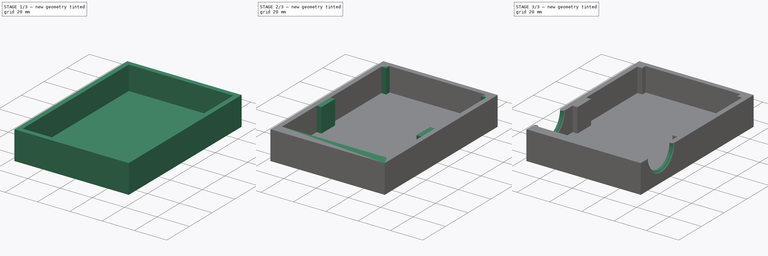
[diagram: build sequence overview — one tinted view per stage of 3, left to right]
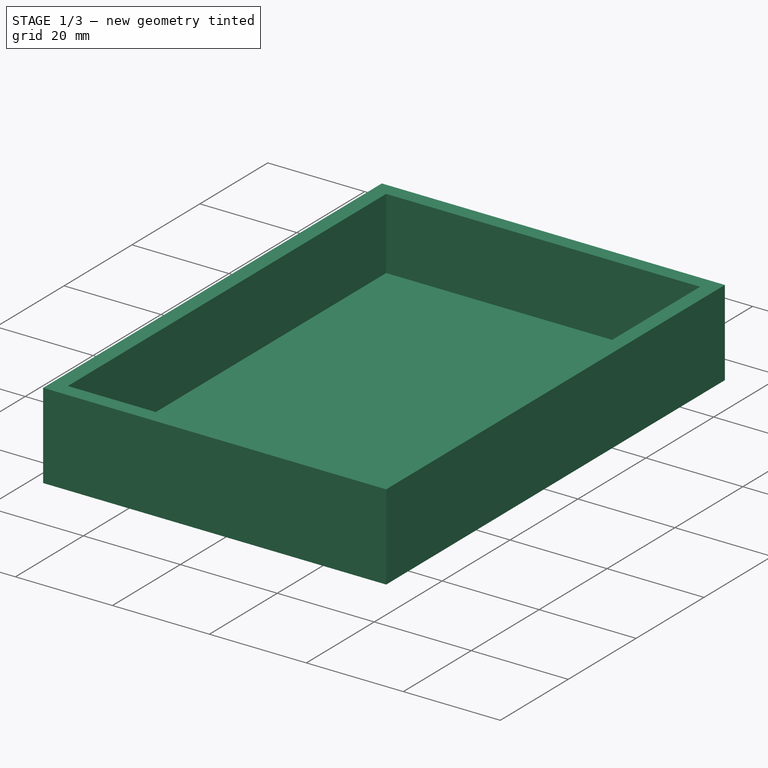
[diagram: stage 1 of 3 — iso view after this stage's code; geometry added in this stage tinted green]
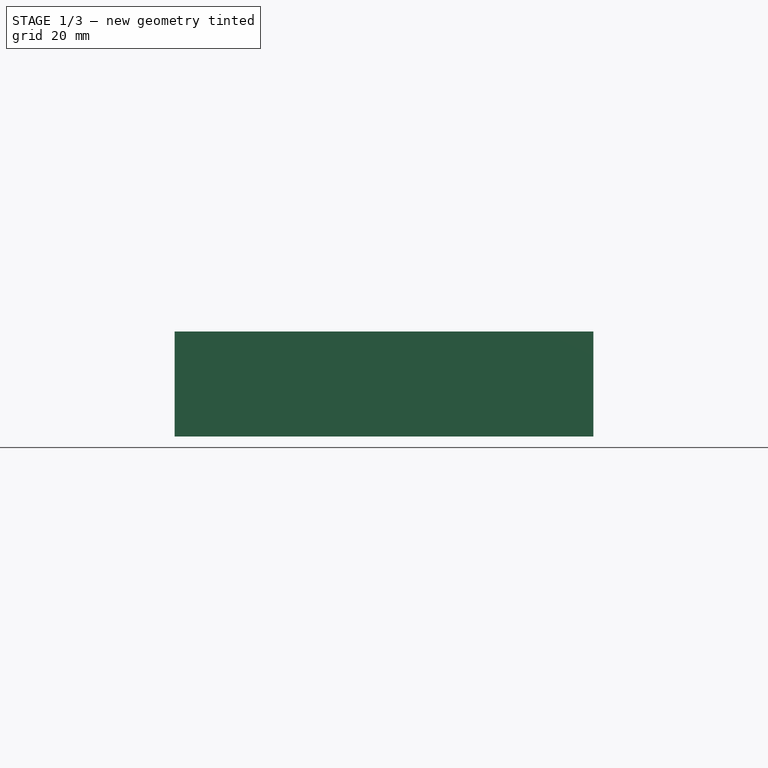
[diagram: stage 1 of 3 — front view after this stage's code; geometry added in this stage tinted green]
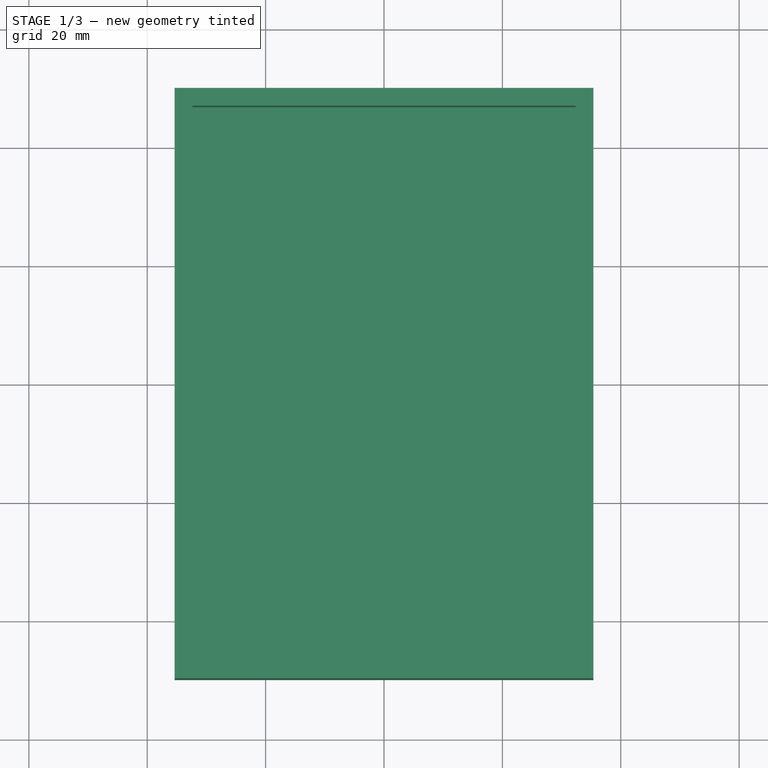
[diagram: stage 1 of 3 — top view after this stage's code; geometry added in this stage tinted green]
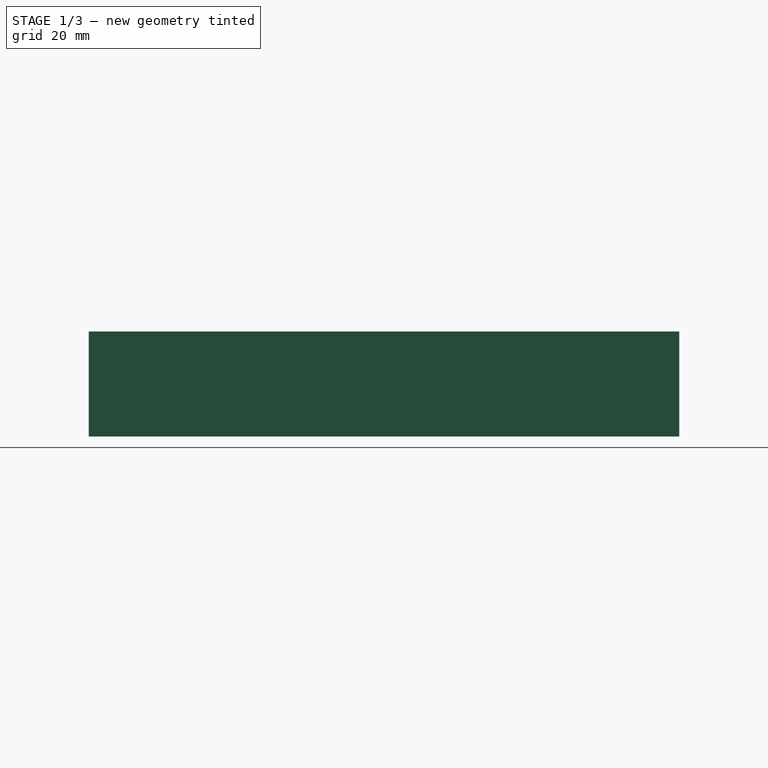
[diagram: stage 1 of 3 — right view after this stage's code; geometry added in this stage tinted green]
FCSTD DOCUMENT  (FreeCAD 1.0R39285 (Git))
Label: FinalCase
License: All rights reserved
LicenseURL: https://en.wikipedia.org/wiki/All_rights_reserved
objects: Sketcher::SketchObject×6, PartDesign::Pad×3, Spreadsheet::Sheet×1, PartDesign::Pocket×1, PartDesign::Revolution×1, PartDesign::Body×1, App::Part×1
note: 28 computed .brp shape members not serialized (recipe doc carries the construction recipe); baked Part::Feature solids carry a one-line shape summary decoded from their .brp

FEATURE [Spreadsheet::Sheet] Spreadsheet  label="S"
  cells = A2='zero_width; B2(zero_width)=18; A3='zero_length; B3(zero_length)=23.5; A4='zero_usb_width; B4(zero_usb_width)=9; A5='zero_usb_nib; B5(zero_usb_nib)=1; A6='zero_pcb_thickness; B6(zero_pcb_thickness)=1.15; A7='zero_usb_thickness; B7(zero_usb_thickness)=3.25; C7='This is also the thickest top part; A8='zero_bottom_height; B8(zero_bottom_height)=1.25; A9='zero_bottom_chip_width; B9(zero_bottom_chip_width)=7; A10='zero_pad_width; B10(zero_pad_width)=2.5; A16='ads1115_width; B16(ads1115_width)=28; A17='ads1115_length; B17(ads1115_length)=17.2; A18='ads115_pcb_thickness; B18(ads115_pcb_thickness)=1.5; A19='ads115_holes; B19(ads115_holes)=2.4; A22='charger_width; B22(charger_width)=17.3; A23='charger_length; B23(charger_length)=28; A24='charger_usb_width; B24(charger_usb_width)=9; A25='charger_holes; B25(charger_holes)=1.5; A26='charger_pcb_thickness; B26(charger_pcb_thickness)=1.6; A27='charger_usb_height; B27(charger_usb_height)=4.2; A31='oled_width; B31(oled_width)=28.15; C31='https://thepihut.com/products/blue-0-96-oled-display-module-128x94?srsltid=AfmBOoqjCmrL4VVzqR_EE5hcJSdx-CRojF6zMIyrO1bcx0NnoYyN6zFz; A32='oled_length; B32(oled_length)=28.25; A33='oled_holes; B33(oled_holes)=1.95; A34='oled_pcb_thickness; B34(oled_pcb_thickness)=1.25; A35='oled_screen_height; B35(oled_screen_height)=1.75; A36='oled_screen_width; B36(oled_screen_width)=25.35; A37='oled_screen_length; B37(oled_screen_length)=16.85; A38='oled_hole_top_edge; B38(oled_hole_top_edge)=1.25; A39='oled_hole_side_edge; B39(oled_hole_side_edge)=1.25; A40='oled_hole_bottom_edge; B40(oled_hole_bottom_edge)=1.25; A41='oled_screen_bottom; B41(oled_screen_bottom)=3; A43='battery_width; B43(battery_width)=30; A44='battery_length; B44(battery_length)=42; A45='batter_depth; B45(batter_depth)=8.2; A49='switch_width; B49(switch_width)=12.3; A50='switch_length; B50(switch_length)=19.2; A51='switch_depth; B51(switch_depth)=11.1; A52='swith_length; B52(swith_length)=6; A53='switch_button_diameter; B53(switch_button_diameter)=3.5; A54='switch_button_height; B54(switch_button_height)=1.75; A55='switch_top_thingies; B55(switch_top_thingies)=0.6; A59='vr_length; B59(vr_length)=15.5; A60='vr_width; B60(vr_width)=10.25; A61='vr_back_depth; B61(vr_back_depth)=1.3; A62='vr_hole; B62(vr_hole)=3.7; A63='vr_hole_top_edge; B63(vr_hole_top_edge)=1; A65='sensor_minor_body_length; B65(sensor_minor_body_length)=24; A66='sensor_diameter; B66(sensor_diameter)=29.5; A67='sensor_length; B67(sensor_length)=41.5; A68='sensor_thread_diameter; B68(sensor_thread_diameter)=16; A69='sensor_thread_pitch; B69(sensor_thread_pitch)=1; A70='sensor_thread_per_inch; B70(sensor_thread_per_inch)=25.4; A71='sensor_thread_length; B71(sensor_thread_length)=7.5; A72='sensor_smaller_body_diameter; B72(sensor_smaller_body_diameter)=26.3; A74='nipple_minor_diameter; B74(nipple_minor_diameter)=12.12; A75='nipple_pitch; B75(nipple_pitch)=1.41; A76='nipple_thread_diameter; B76(nipple_thread_diameter)=13.75; A77='nipple_thread_per_inch; B77(nipple_thread_per_inch)=18; A78='nipple_thread_length; B78(nipple_thread_length)=12.6; A80='dimension_base_height; B80(dimension_base_height)=12; A81='dimension_extender_height; B81(dimension_extender_height)=42; A83='insert_diameter; B83(insert_diameter)=3.05; A85='dimension_wall_thickness; B85(dimension_wall_thickness)=3; A86='dimension_case_width; B86(dimension_case_width)=70.75; A87='dimension_case_length; B87(dimension_case_length)=70; A88='dimension_adapter_wall_thickness; B88(dimension_adapter_wall_thickness)=5; A89='dimension_face_thickness; B89(dimension_face_thickness)=3; A92='button_diameter; B92(button_diameter)=12.25; A93='dimension_oled_edge; B93(dimension_oled_edge)=33; A97='screw_diameter; B97(screw_diameter)=2.75; A98='screw_head_diameter; B98(screw_head_diameter)=4; A102='tollerance; B102(tollerance)=1; A103='insert_tollerance; B103(insert_tollerance)==B83 + 2 - B85
FEATURE [Sketcher::SketchObject] Sketch
  ArcFitTolerance = 1e-06
  AttachmentSupport = -> [XY_Plane001]
  FullyConstrained = true
  MakeInternals = false
  MapMode = 5
  expr: Constraints[8] = <<S>>.dimension_case_width
  expr: Constraints[9] = <<S>>.dimension_case_length + <<S>>.nipple_thread_diameter + <<S>>.dimension_adapter_wall_thickness * 2 + <<S>>.dimension_wall_thickness * 2
  sketch-geometry (4):
    g0: LineSegment StartX=-35.375 StartY=49.875 StartZ=0 EndX=-35.375 EndY=-49.875 EndZ=0
    g1: LineSegment StartX=-35.375 StartY=-49.875 StartZ=0 EndX=35.375 EndY=-49.875 EndZ=0
    g2: LineSegment StartX=35.375 StartY=-49.875 StartZ=0 EndX=35.375 EndY=49.875 EndZ=0
    g3: LineSegment StartX=35.375 StartY=49.875 StartZ=0 EndX=-35.375 EndY=49.875 EndZ=0
  constraints (11):
    c: Coincident(g0,g1)
    c: Coincident(g1,g2)
    c: Coincident(g2,g3)
    c: Coincident(g3,g0)
    c: Vertical(g0)
    c: Vertical(g2)
    c: Horizontal(g1)
    c: Horizontal(g3)
    c: DistanceX(g3,g3) = 70.75
    c: DistanceY(g0,g0) = 99.75
    c: Symmetric(g2,g0,g-1)
FEATURE [PartDesign::Pad] Pad  label="FacePad"
  Direction = (0,0,1)
  Length = 3
  Length2 = 10
  Profile = -> Sketch
  ReferenceAxis = -> Sketch [N_Axis]
  Refine = true
  Suppressed = false
  Type = 0
  expr: Length = <<S>>.dimension_face_thickness
FEATURE [Sketcher::SketchObject] Sketch003
  ArcFitTolerance = 1e-06
  AttachmentSupport = -> [Pad]
  FullyConstrained = true
  MakeInternals = false
  MapMode = 5
  Placement = pos=(0,0,3) rot=(0,0,1;0rad)
  expr: Constraints[20] = <<S>>.dimension_case_length + <<S>>.nipple_thread_diameter + <<S>>.dimension_adapter_wall_thickness * 2 + <<S>>.dimension_wall_thickness * 2
  expr: Constraints[8] = <<S>>.dimension_case_length + <<S>>.nipple_thread_diameter + <<S>>.dimension_adapter_wall_thickness * 2
  expr: Constraints[9] = <<S>>.dimension_case_width - <<S>>.dimension_wall_thickness * 2
  sketch-geometry (8):
    g0: LineSegment StartX=-32.375 StartY=46.875 StartZ=0 EndX=-32.375 EndY=-46.875 EndZ=0
    g1: LineSegment StartX=-32.375 StartY=-46.875 StartZ=0 EndX=32.375 EndY=-46.875 EndZ=0
    g2: LineSegment StartX=32.375 StartY=-46.875 StartZ=0 EndX=32.375 EndY=46.875 EndZ=0
    g3: LineSegment StartX=32.375 StartY=46.875 StartZ=0 EndX=-32.375 EndY=46.875 EndZ=0
    g4: LineSegment StartX=-35.375 StartY=49.875 StartZ=0 EndX=-35.375 EndY=-49.875 EndZ=0
    g5: LineSegment StartX=-35.375 StartY=-49.875 StartZ=0 EndX=35.375 EndY=-49.875 EndZ=0
    g6: LineSegment StartX=35.375 StartY=-49.875 StartZ=0 EndX=35.375 EndY=49.875 EndZ=0
    g7: LineSegment StartX=35.375 StartY=49.875 StartZ=0 EndX=-35.375 EndY=49.875 EndZ=0
  constraints (22):
    c: Coincident(g0,g1)
    c: Coincident(g1,g2)
    c: Coincident(g2,g3)
    c: Coincident(g3,g0)
    c: Vertical(g0)
    c: Vertical(g2)
    c: Horizontal(g1)
    c: Horizontal(g3)
    c: DistanceY(g0,g0) = 93.75
    c: DistanceX(g3,g3) = 64.75
    c: Symmetric(g2,g0,g-1)
    c: Coincident(g4,g5)
    c: Coincident(g5,g6)
    c: Coincident(g6,g7)
    c: Coincident(g7,g4)
    c: Vertical(g4)
    c: Vertical(g6)
    c: Horizontal(g5)
    c: Horizontal(g7)
    c: DistanceX(g7,g7) = 70.75
    c: DistanceY(g4,g4) = 99.75
    c: Symmetric(g6,g4,g-1)
FEATURE [PartDesign::Pad] Pad001  label="OuterWallPad"
  BaseFeature = -> Pad
  Direction = (0,0,1)
  Length = 14.75
  Length2 = 10
  Profile = -> Sketch003
  ReferenceAxis = -> Sketch003 [N_Axis]
  Refine = true
  Suppressed = false
  Type = 0
  expr: Length = <<S>>.sensor_diameter / 2
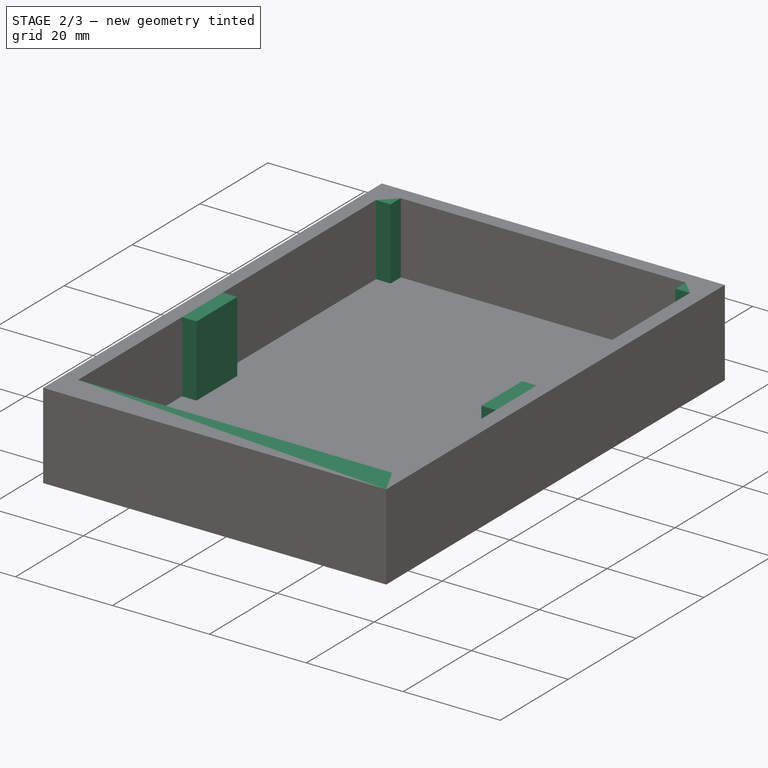
[diagram: stage 2 of 3 — iso view after this stage's code; geometry added in this stage tinted green]
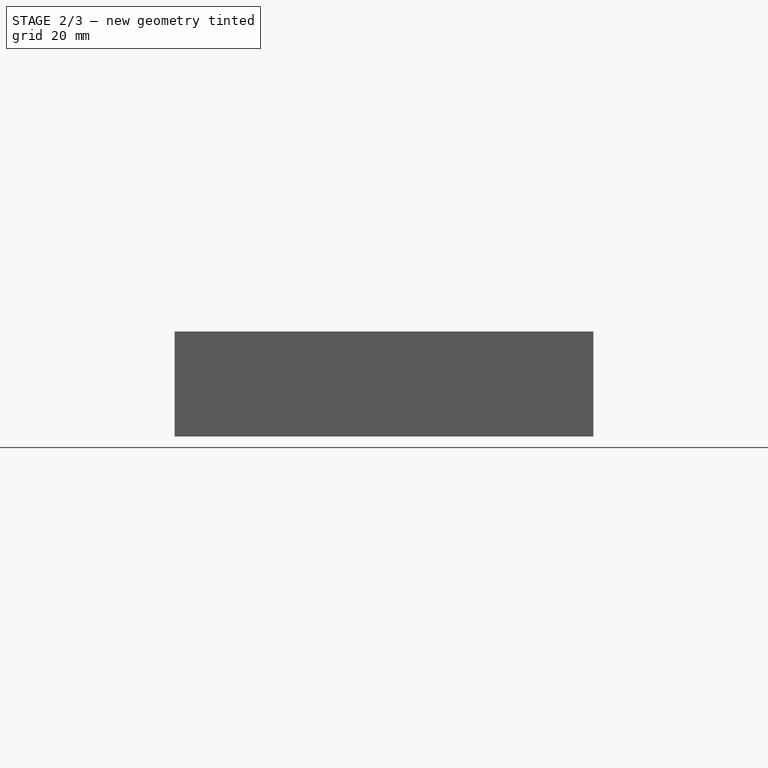
[diagram: stage 2 of 3 — front view after this stage's code; geometry added in this stage tinted green]
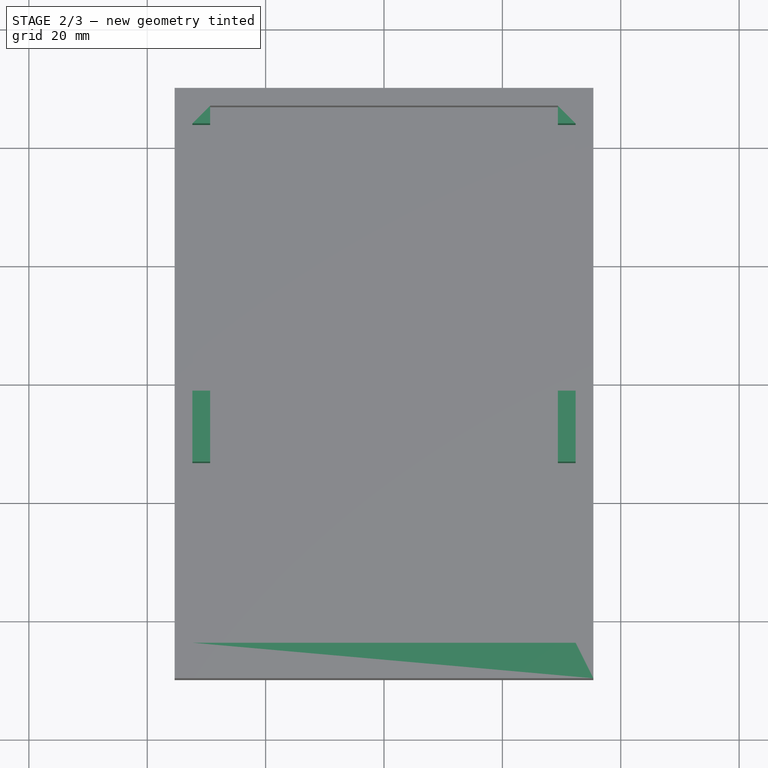
[diagram: stage 2 of 3 — top view after this stage's code; geometry added in this stage tinted green]
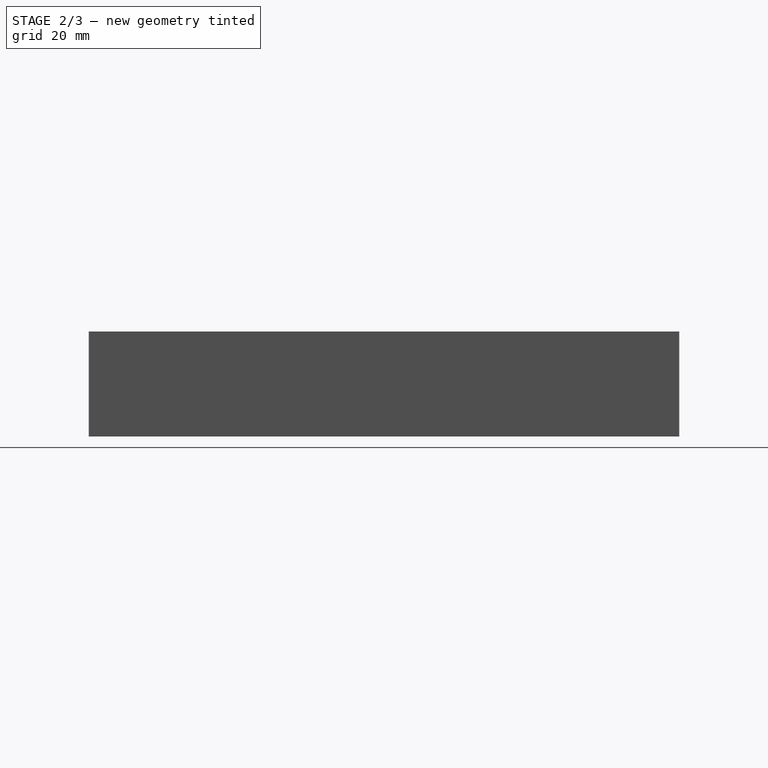
[diagram: stage 2 of 3 — right view after this stage's code; geometry added in this stage tinted green]
FEATURE [Sketcher::SketchObject] Sketch004
  ArcFitTolerance = 1e-06
  AttachmentSupport = -> [Pad001]
  FullyConstrained = true
  MakeInternals = false
  MapMode = 5
  Placement = pos=(0,0,3) rot=(0,0,1;0rad)
  expr: Constraints[35] = <<S>>.dimension_wall_thickness
  expr: Constraints[36] = <<S>>.dimension_wall_thickness
  expr: Constraints[44] = <<S>>.dimension_wall_thickness
  expr: Constraints[47] = <<S>>.dimension_wall_thickness
  expr: Constraints[48] = <<S>>.dimension_case_length + <<S>>.nipple_thread_diameter + <<S>>.dimension_adapter_wall_thickness * 2
  expr: Constraints[49] = (<<S>>.dimension_case_length + <<S>>.nipple_thread_diameter + <<S>>.dimension_adapter_wall_thickness * 2) / 2
  expr: Constraints[50] = <<S>>.dimension_case_width - <<S>>.dimension_wall_thickness * 2
  expr: Constraints[51] = (<<S>>.dimension_case_width - <<S>>.dimension_wall_thickness * 2) / 2
  expr: Constraints[58] = <<S>>.dimension_wall_thickness * 4
  sketch-geometry (20):
    g0: LineSegment StartX=-32.375 StartY=46.875 StartZ=0 EndX=-32.375 EndY=43.875 EndZ=0
    g1: LineSegment StartX=-32.375 StartY=43.875 StartZ=0 EndX=-29.375 EndY=43.875 EndZ=0
    g2: LineSegment StartX=-29.375 StartY=43.875 StartZ=0 EndX=-29.375 EndY=46.875 EndZ=0
    g3: LineSegment StartX=-29.375 StartY=46.875 StartZ=0 EndX=-32.375 EndY=46.875 EndZ=0
    g4: LineSegment StartX=32.375 StartY=46.875 StartZ=0 EndX=29.375 EndY=46.875 EndZ=0
    g5: LineSegment StartX=29.375 StartY=46.875 StartZ=0 EndX=29.375 EndY=43.875 EndZ=0
    g6: LineSegment StartX=29.375 StartY=43.875 StartZ=0 EndX=32.375 EndY=43.875 EndZ=0
    g7: LineSegment StartX=32.375 StartY=43.875 StartZ=0 EndX=32.375 EndY=46.875 EndZ=0
    g8: LineSegment StartX=-32.375 StartY=-46.875 StartZ=0 EndX=32.375 EndY=-46.875 EndZ=0
    g9: LineSegment StartX=32.375 StartY=-46.875 StartZ=0 EndX=32.375 EndY=-43.875 EndZ=0
    g10: LineSegment StartX=32.375 StartY=-43.875 StartZ=0 EndX=-32.375 EndY=-43.875 EndZ=0
    g11: LineSegment StartX=-32.375 StartY=-43.875 StartZ=0 EndX=-32.375 EndY=-46.875 EndZ=0
    g12: LineSegment StartX=-32.375 StartY=-1.275 StartZ=0 EndX=-32.375 EndY=-13.275 EndZ=0
    g13: LineSegment StartX=-29.375 StartY=-1.275 StartZ=0 EndX=-32.375 EndY=-1.275 EndZ=0
    g14: LineSegment StartX=32.375 StartY=-1.275 StartZ=0 EndX=29.375 EndY=-1.275 EndZ=0
    g15: LineSegment StartX=29.375 StartY=-1.275 StartZ=0 EndX=29.375 EndY=-13.275 EndZ=0
    g16: LineSegment StartX=29.375 StartY=-13.275 StartZ=0 EndX=32.375 EndY=-13.275 EndZ=0
    g17: LineSegment StartX=32.375 StartY=-13.275 StartZ=0 EndX=32.375 EndY=-1.275 EndZ=0
    g18: LineSegment StartX=-32.375 StartY=-13.275 StartZ=0 EndX=-29.375 EndY=-13.275 EndZ=0
    g19: LineSegment StartX=-29.375 StartY=-13.275 StartZ=0 EndX=-29.375 EndY=-1.275 EndZ=0
  constraints (60):
    c: Coincident(g0,g1)
    c: Coincident(g1,g2)
    c: Coincident(g2,g3)
    c: Coincident(g3,g0)
    c: Vertical(g0)
    c: Vertical(g2)
    c: Horizontal(g1)
    c: Horizontal(g3)
    c: Coincident(g4,g5)
    c: Coincident(g5,g6)
    c: Coincident(g6,g7)
    c: Coincident(g7,g4)
    c: Horizontal(g4)
    c: Horizontal(g6)
    c: Vertical(g5)
    c: Vertical(g7)
    c: Coincident(g8,g9)
    c: Coincident(g9,g10)
    c: Coincident(g10,g11)
    c: Coincident(g11,g8)
    c: Horizontal(g8)
    c: Horizontal(g10)
    c: Vertical(g9)
    c: Vertical(g11)
    c: Coincident(g13,g12)
    c: Vertical(g12)
    c: Horizontal(g13)
    c: Coincident(g14,g15)
    c: Coincident(g15,g16)
    c: Coincident(g16,g17)
    c: Coincident(g17,g14)
    c: Horizontal(g14)
    c: Horizontal(g16)
    c: Vertical(g15)
    c: Vertical(g17)
    c: DistanceX(g1,g1) = 3
    c: DistanceX(g6,g6) = 3
    c: DistanceX(g1,g13) = 0
    c: DistanceX(g12,g0) = 0
    c: DistanceX(g5,g14) = 0
    c: DistanceX(g6,g14) = 0
    c: DistanceX(g16,g9) = 0
    c: DistanceX(g10,g12) = 0
    c: DistanceY(g4,g2) = 0
    c: DistanceY(g0,g0) = 3
    c: DistanceY(g5,g1) = 0
    c: DistanceY(g14,g13) = 0
    c: DistanceY(g11,g11) = 3
    c: DistanceY(g8,g0) = 93.75
    c: DistanceY(g-1,g0) = 46.875
    c: DistanceX(g0,g4) = 64.75
    c: DistanceX(g0,g-1) = 32.375
    c: DistanceY(g10,g12) = 30.6
    c: Coincident(g12,g18)
    c: Horizontal(g18)
    c: Coincident(g18,g19)
    c: Coincident(g19,g13)
    c: Vertical(g19)
    c: DistanceY(g12,g12) = 12
    c: DistanceY(g18,g15) = 0
FEATURE [PartDesign::Pad] Pad002  label="InnerWallPad"
  BaseFeature = -> Pad001
  Direction = (0,0,1)
  Length = 14.75
  Length2 = 10
  Profile = -> Sketch004
  ReferenceAxis = -> Sketch004 [N_Axis]
  Refine = true
  Suppressed = false
  Type = 0
  expr: Length = <<S>>.sensor_diameter / 2
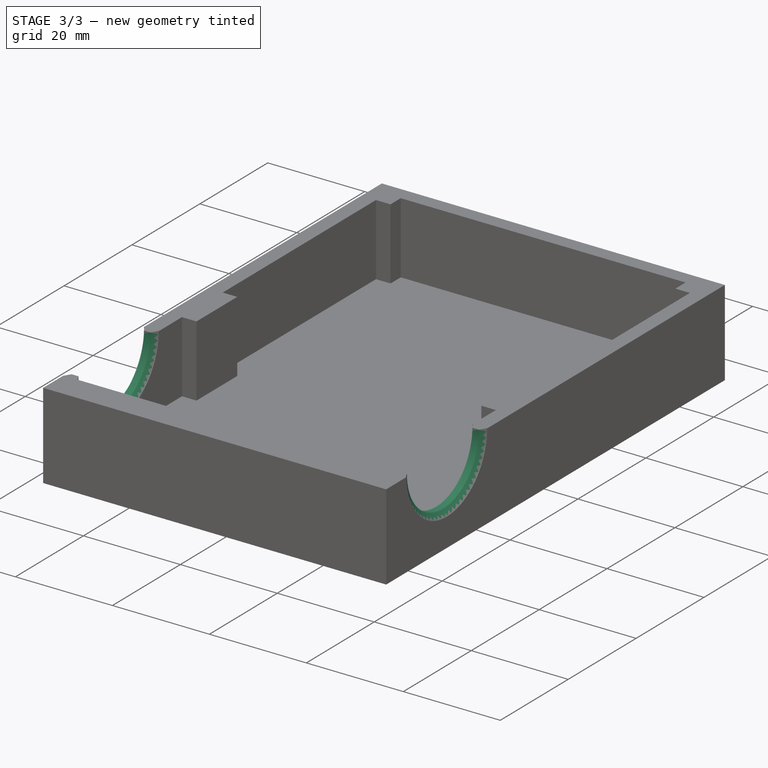
[diagram: stage 3 of 3 — iso view after this stage's code; geometry added in this stage tinted green]
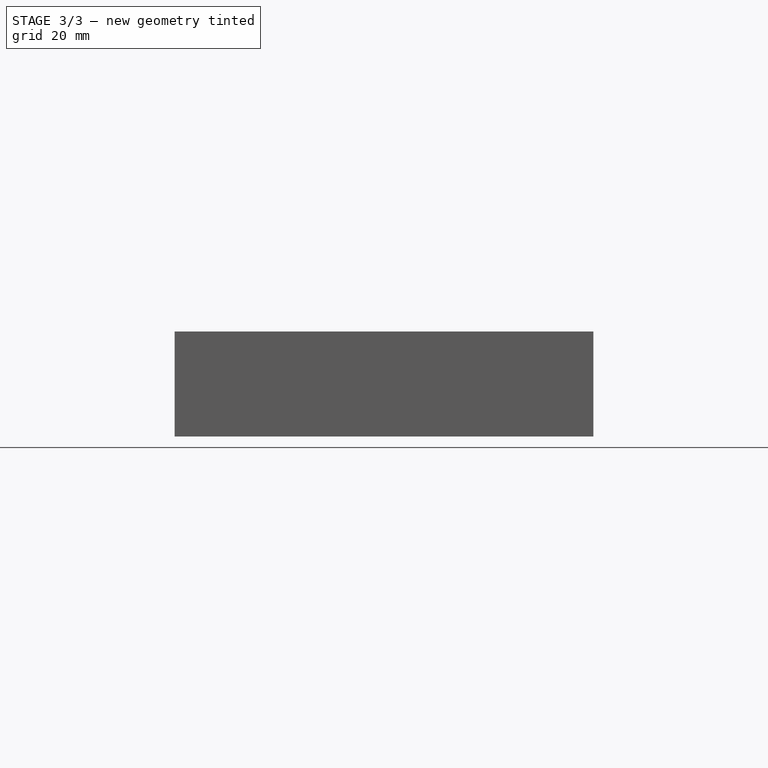
[diagram: stage 3 of 3 — front view after this stage's code; geometry added in this stage tinted green]
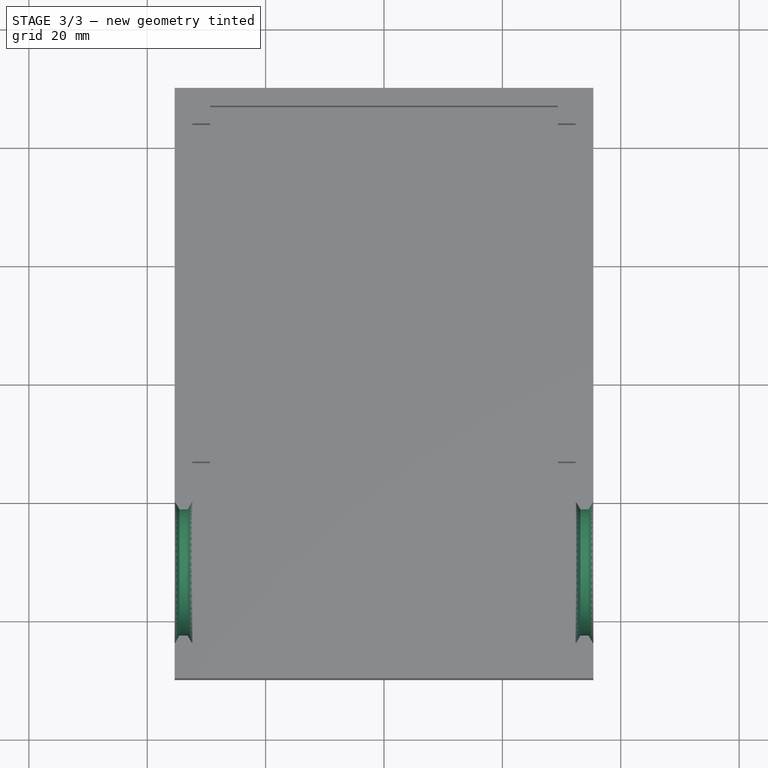
[diagram: stage 3 of 3 — top view after this stage's code; geometry added in this stage tinted green]
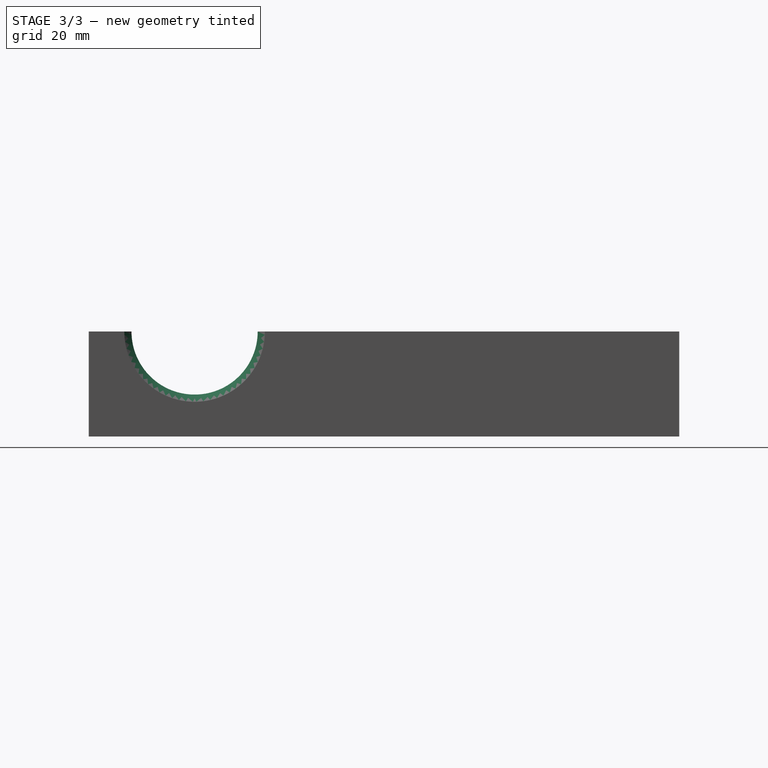
[diagram: stage 3 of 3 — right view after this stage's code; geometry added in this stage tinted green]
FEATURE [Sketcher::SketchObject] Sketch005
  ArcFitTolerance = 1e-06
  AttachmentSupport = -> [Pad002]
  FullyConstrained = true
  MakeInternals = false
  MapMode = 5
  Placement = pos=(-35.375,0,0) rot=(0.57735,-0.57735,-0.57735;2.0944rad)
  expr: Constraints[0] = <<S>>.nipple_thread_diameter + <<S>>.dimension_adapter_wall_thickness * 2
  expr: Constraints[1] = <<S>>.dimension_face_thickness + <<S>>.sensor_diameter / 2
  expr: Constraints[2] = (<<S>>.dimension_case_length + <<S>>.nipple_thread_diameter + <<S>>.dimension_adapter_wall_thickness * 2 + <<S>>.dimension_wall_thickness * 2) / 2 - <<S>>.dimension_wall_thickness * 2 - (<<S>>.nipple_thread_diameter + <<S>>.dimension_adapter_wall_thickness * 2) / 2
  sketch-geometry (1):
    g0: Circle CenterX=32 CenterY=17.75 CenterZ=0 NormalX=0 NormalY=0 NormalZ=1 AngleXU=0 Radius=11.875
  constraints (3):
    c: Diameter(g0) = 23.75
    c: DistanceY(g-1,g0) = 17.75
    c: DistanceX(g-1,g0) = 32
FEATURE [PartDesign::Pocket] Pocket  label="InsertPocket"
  BaseFeature = -> Pad002
  Direction = (1,0,0)
  Length = 5
  Length2 = 5
  Profile = -> Sketch005
  ReferenceAxis = -> Sketch005 [N_Axis]
  Refine = true
  Suppressed = false
  Type = 1
FEATURE [Sketcher::SketchObject] Sketch006
  ArcFitTolerance = 1e-06
  AttachmentSupport = -> [Pocket]
  FullyConstrained = true
  MakeInternals = false
  MapMode = 5
  Placement = pos=(0,0,17.75) rot=(0,0,1;0rad)
  expr: Constraints[38] = <<S>>.dimension_case_width - 0.2
  expr: Constraints[39] = (<<S>>.dimension_case_width - 0.2) / 2
  expr: Constraints[40] = (<<S>>.dimension_case_length + <<S>>.nipple_thread_diameter + <<S>>.dimension_adapter_wall_thickness * 2 + <<S>>.dimension_wall_thickness * 2) / 2 - <<S>>.dimension_wall_thickness * 2
  sketch-geometry (14):
    g0: LineSegment StartX=-33.175 StartY=-42.6626 StartZ=0 EndX=-34.575 EndY=-42.6626 EndZ=0
    g1: LineSegment StartX=-34.575 StartY=-42.6626 StartZ=0 EndX=-35.275 EndY=-43.875 EndZ=0
    g2: LineSegment StartX=-35.275 StartY=-43.875 StartZ=0 EndX=-34.575 EndY=-45.0874 EndZ=0
    g3: LineSegment StartX=-34.575 StartY=-45.0874 StartZ=0 EndX=-33.175 EndY=-45.0874 EndZ=0
    g4: LineSegment StartX=-33.175 StartY=-45.0874 StartZ=0 EndX=-32.475 EndY=-43.875 EndZ=0
    g5: LineSegment StartX=-32.475 StartY=-43.875 StartZ=0 EndX=-33.175 EndY=-42.6626 EndZ=0
    g6: Circle [constr] CenterX=-33.875 CenterY=-43.875 CenterZ=0 NormalX=0 NormalY=0 NormalZ=1 AngleXU=0 Radius=1.4
    g7: LineSegment StartX=34.575 StartY=-42.6626 StartZ=0 EndX=33.175 EndY=-42.6626 EndZ=0
    g8: LineSegment StartX=33.175 StartY=-42.6626 StartZ=0 EndX=32.475 EndY=-43.875 EndZ=0
    g9: LineSegment StartX=32.475 StartY=-43.875 StartZ=0 EndX=33.175 EndY=-45.0874 EndZ=0
    g10: LineSegment StartX=33.175 StartY=-45.0874 StartZ=0 EndX=34.575 EndY=-45.0874 EndZ=0
    g11: LineSegment StartX=34.575 StartY=-45.0874 StartZ=0 EndX=35.275 EndY=-43.875 EndZ=0
    g12: LineSegment StartX=35.275 StartY=-43.875 StartZ=0 EndX=34.575 EndY=-42.6626 EndZ=0
    g13: Circle [constr] CenterX=33.875 CenterY=-43.875 CenterZ=0 NormalX=0 NormalY=0 NormalZ=1 AngleXU=0 Radius=1.4
  constraints (34):
    c: Coincident(g0,g1)
    c: Coincident(g1,g2)
    c: Coincident(g2,g3)
    c: Coincident(g3,g4)
    c: Coincident(g4,g5)
    c: Coincident(g5,g0)
    c: Equal(g0, g1-g5) x5
    c: PointOnObject(g0,g6)
    c: PointOnObject(g1,g6)
    c: PointOnObject(g2,g6)
    c: PointOnObject(g3,g6)
    c: PointOnObject(g4,g6)
    c: PointOnObject(g5,g6)
    c: Radius(g6) = 1.4
    c: Coincident(g7,g8)
    c: Coincident(g8,g9)
    c: Coincident(g9,g10)
    c: Coincident(g10,g11)
    c: Coincident(g11,g12)
    c: Coincident(g12,g7)
    c: Equal(g7, g8-g12) x5
    c: PointOnObject(g7,g13)
    c: PointOnObject(g8,g13)
    c: PointOnObject(g9,g13)
    c: PointOnObject(g10,g13)
    c: PointOnObject(g11,g13)
    c: PointOnObject(g12,g13)
    c: Radius(g13) = 1.4
    c: DistanceY(g0,g0) = 0
    c: DistanceY(g7,g7) = 0
    c: DistanceX(g1,g11) = 70.55
    c: DistanceX(g1,g-1) = 35.275
    c: DistanceY(g6,g-1) = 43.875
    c: DistanceY(g6,g13) = 0
FEATURE [PartDesign::Revolution] Revolution  label="InsertRevolution"
  Angle = 180
  Angle2 = 60
  Axis = (-1,0,0)
  Base = (-35.375,-32,17.75)
  BaseFeature = -> Pocket
  Profile = -> Sketch006
  ReferenceAxis = -> Pocket [Edge7]
  Refine = true
  Reversed = true
  Suppressed = false
  Type = 0
FEATURE [Sketcher::SketchObject] Sketch007
  ArcFitTolerance = 1e-06
  AttachmentSupport = -> [Revolution]
  FullyConstrained = true
  MakeInternals = false
  MapMode = 5
  Placement = pos=(0,0,17.75) rot=(0,0,1;0rad)
  expr: Constraints[18] = <<S>>.dimension_case_width / 2 - <<S>>.dimension_wall_thickness - <<S>>.dimension_wall_thickness / 2 + <<S>>.tollerance
  expr: Constraints[19] = <<S>>.dimension_case_width / 2 - <<S>>.dimension_wall_thickness - <<S>>.dimension_wall_thickness / 2 + <<S>>.tollerance
  expr: Constraints[20] = (<<S>>.dimension_case_length + <<S>>.nipple_thread_diameter + <<S>>.dimension_adapter_wall_thickness * 2 + <<S>>.dimension_wall_thickness * 2) / 2 - <<S>>.dimension_wall_thickness - <<S>>.dimension_wall_thickness / 2 + <<S>>.tollerance
  expr: Constraints[21] = (<<S>>.dimension_case_length + <<S>>.nipple_thread_diameter + <<S>>.dimension_adapter_wall_thickness * 2 + <<S>>.dimension_wall_thickness * 2) / 2 - <<S>>.dimension_wall_thickness - <<S>>.dimension_wall_thickness / 2 + <<S>>.tollerance
  expr: Constraints[22] = <<S>>.dimension_wall_thickness * 2 + <<S>>.tollerance
  expr: Constraints[23] = (<<S>>.dimension_case_length + <<S>>.nipple_thread_diameter + <<S>>.dimension_adapter_wall_thickness * 2 + <<S>>.dimension_wall_thickness * 2) / 2 - <<S>>.dimension_wall_thickness * 2 - 30.6 - <<S>>.dimension_wall_thickness + <<S>>.tollerance / 2
  expr: Constraints[7] = <<S>>.insert_diameter
  sketch-geometry (8):
    g0: Circle CenterX=-31.875 CenterY=-46.375 CenterZ=0 NormalX=0 NormalY=0 NormalZ=1 AngleXU=0 Radius=1.525
    g1: Circle CenterX=31.875 CenterY=-46.375 CenterZ=0 NormalX=0 NormalY=0 NormalZ=1 AngleXU=0 Radius=1.525
    g2: Circle CenterX=-31.875 CenterY=-10.775 CenterZ=0 NormalX=0 NormalY=0 NormalZ=1 AngleXU=0 Radius=1.525
    g3: Circle CenterX=31.875 CenterY=-10.775 CenterZ=0 NormalX=0 NormalY=0 NormalZ=1 AngleXU=0 Radius=1.525
    g4: Circle CenterX=-31.875 CenterY=-3.775 CenterZ=0 NormalX=0 NormalY=0 NormalZ=1 AngleXU=0 Radius=1.525
    g5: Circle CenterX=31.875 CenterY=-3.775 CenterZ=0 NormalX=0 NormalY=0 NormalZ=1 AngleXU=0 Radius=1.525
    g6: Circle CenterX=-31.875 CenterY=46.375 CenterZ=0 NormalX=0 NormalY=0 NormalZ=1 AngleXU=0 Radius=1.525
    g7: Circle CenterX=31.875 CenterY=46.375 CenterZ=0 NormalX=0 NormalY=0 NormalZ=1 AngleXU=0 Radius=1.525
  constraints (18):
    c: Equal(g0, g1-g7) x7
    c: Diameter(g0) = 3.05
    c: DistanceX(g4,g6) = 0
    c: DistanceX(g4,g2) = 0
    c: DistanceX(g2,g0) = 0
    c: DistanceX(g1,g3) = 0
    c: DistanceX(g5,g3) = 0
    c: DistanceX(g7,g5) = 0
    c: DistanceY(g6,g7) = 0
    c: DistanceY(g5,g4) = 0
    c: DistanceY(g2,g3) = 0
    c: DistanceY(g0,g1) = 0
    c: DistanceX(g4,g-1) = 31.875
    c: DistanceX(g-1,g5) = 31.875
    c: DistanceY(g0,g-1) = 46.375
    c: DistanceY(g-1,g6) = 46.375
    c: DistanceY(g2,g4) = 7
    c: DistanceY(g2,g-1) = 10.775
FEATURE [PartDesign::Body] Body  label="FinalCaseBaseBody"
  AllowCompound = false
  Group = -> [Sketch,Pad,Sketch003,Pad001,Sketch004,Pad002,Sketch005,Pocket,Sketch006,Revolution,Sketch007]
  Origin = -> Origin001
  Tip = -> Revolution
FEATURE [App::Part] Part  label="FinalCaseBasePart"
  Group = -> [Body]
  Origin = -> Origin
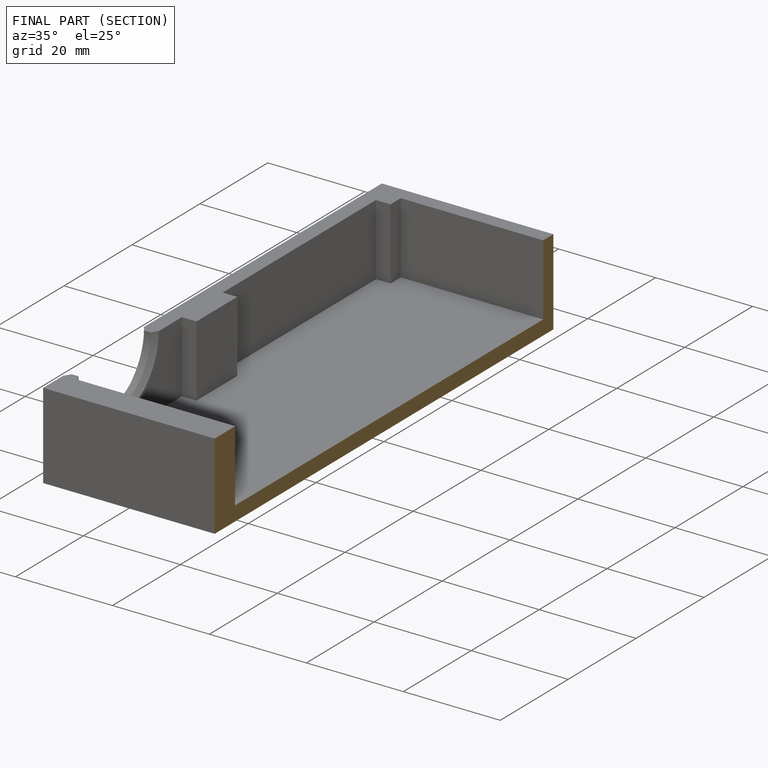
[diagram: finished part — half-section view (interior)]
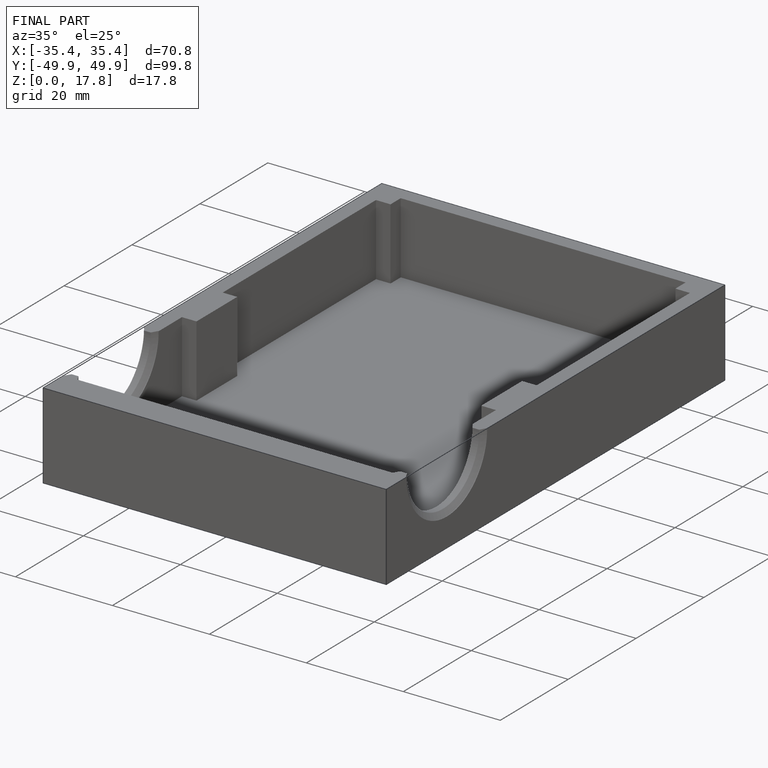
[diagram: finished part — iso view with bounding-box wireframe]
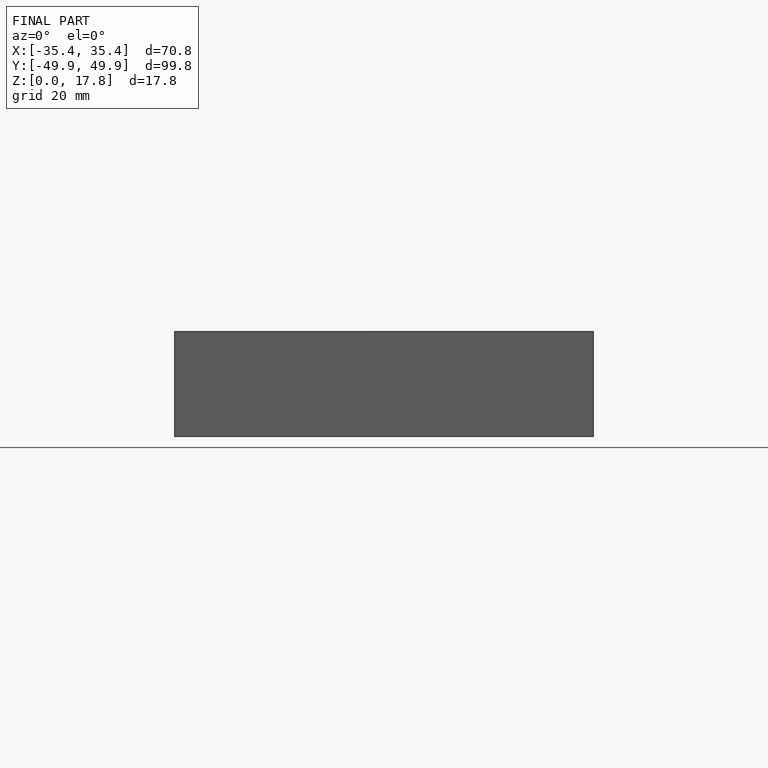
[diagram: finished part — front view with bounding-box wireframe]
